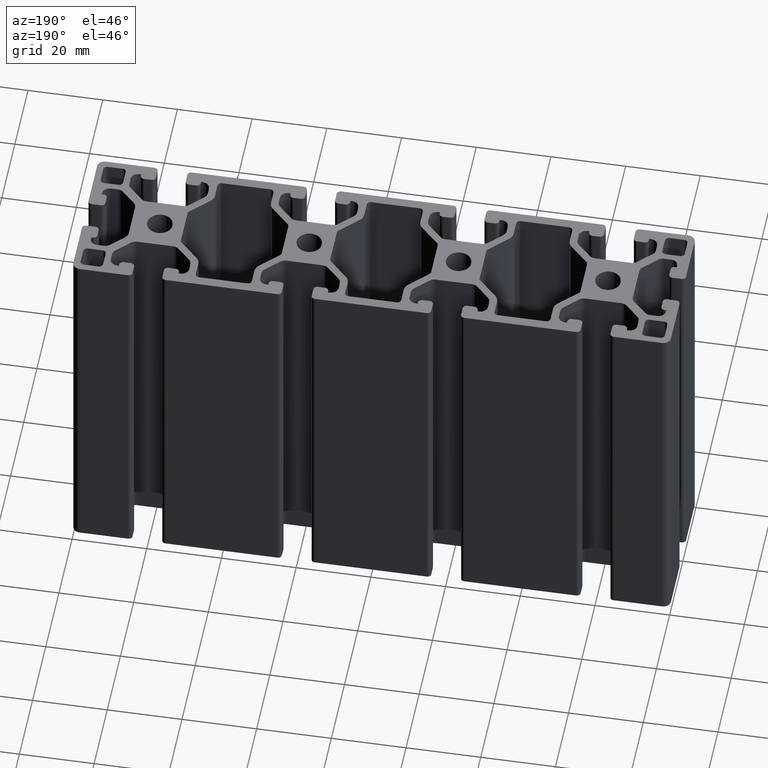
[diagram: clean part render]
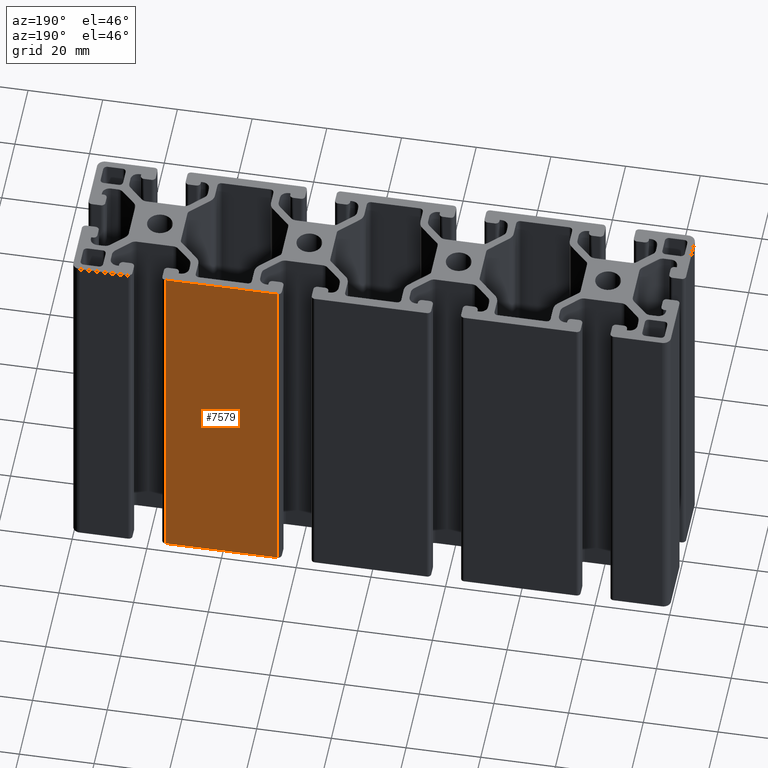
[diagram: same view with one face highlighted and labeled with its STEP entity id]
A machine part, auxiliary view. The second image highlights one B-rep face of the part: STEP entity #7579.
In plain terms, the highlighted planar face has unit normal (0, 1, 0).
Its self-contained STEP definition (entity closure, byte-faithful):
#231=PLANE('',#8311);
#605=FACE_OUTER_BOUND('',#987,.T.);
#987=EDGE_LOOP('',(#6241,#6242,#6243,#6244));
#1466=LINE('',#11908,#2230);
#1571=LINE('',#12218,#2335);
#1770=LINE('',#12788,#2534);
#1771=LINE('',#12789,#2535);
#2230=VECTOR('',#9652,100.);
#2335=VECTOR('',#9955,100.);
#2534=VECTOR('',#10520,30.0000039918973);
#2535=VECTOR('',#10521,30.0000039918973);
#3359=VERTEX_POINT('',#11905);
#3360=VERTEX_POINT('',#11907);
#3464=VERTEX_POINT('',#12212);
#3466=VERTEX_POINT('',#12216);
#4323=EDGE_CURVE('',#3359,#3360,#1466,.T.);
#4477=EDGE_CURVE('',#3464,#3466,#1571,.T.);
#4762=EDGE_CURVE('',#3359,#3464,#1770,.T.);
#4763=EDGE_CURVE('',#3360,#3466,#1771,.T.);
#6241=ORIENTED_EDGE('',*,*,#4323,.F.);
#6242=ORIENTED_EDGE('',*,*,#4762,.T.);
#6243=ORIENTED_EDGE('',*,*,#4477,.T.);
#6244=ORIENTED_EDGE('',*,*,#4763,.F.);
#7579=ADVANCED_FACE('',(#605),#231,.T.);
#8311=AXIS2_PLACEMENT_3D('',#12787,#10518,#10519);
#9652=DIRECTION('',(0.,0.,-1.));
#9955=DIRECTION('',(0.,0.,-1.));
#10518=DIRECTION('center_axis',(0.,1.,0.));
#10519=DIRECTION('ref_axis',(-1.,0.,0.));
#10520=DIRECTION('',(1.,0.,0.));
#10521=DIRECTION('',(1.,0.,0.));
#11905=CARTESIAN_POINT('',(24.9999980040513,20.,100.));
#11907=CARTESIAN_POINT('',(24.9999980040513,20.,0.));
#11908=CARTESIAN_POINT('',(24.9999980040512,20.,0.));
#12212=CARTESIAN_POINT('',(55.0000019959487,20.,100.));
#12216=CARTESIAN_POINT('',(55.0000019959487,20.,0.));
#12218=CARTESIAN_POINT('',(55.0000019959489,20.,0.));
#12787=CARTESIAN_POINT('Origin',(78.,20.,0.));
#12788=CARTESIAN_POINT('',(39.,20.,100.));
#12789=CARTESIAN_POINT('',(39.,20.,0.));